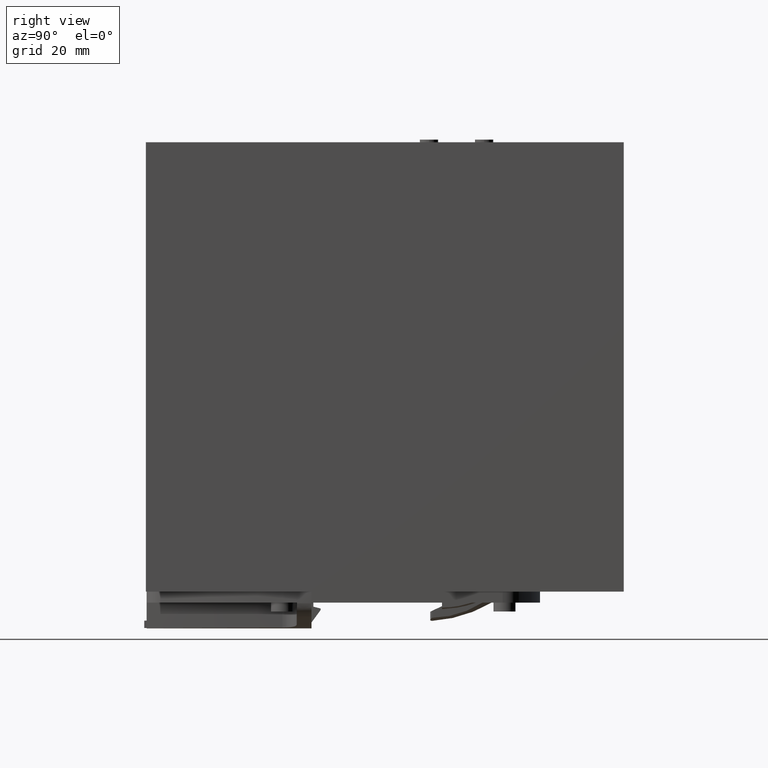
[diagram: clean part render]
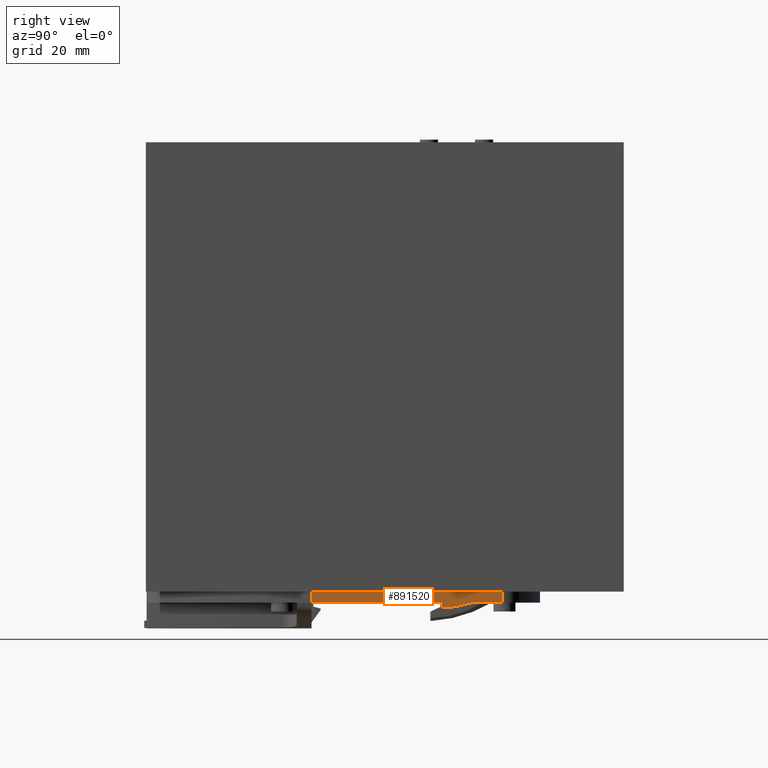
[diagram: same view with one face highlighted and labeled with its STEP entity id]
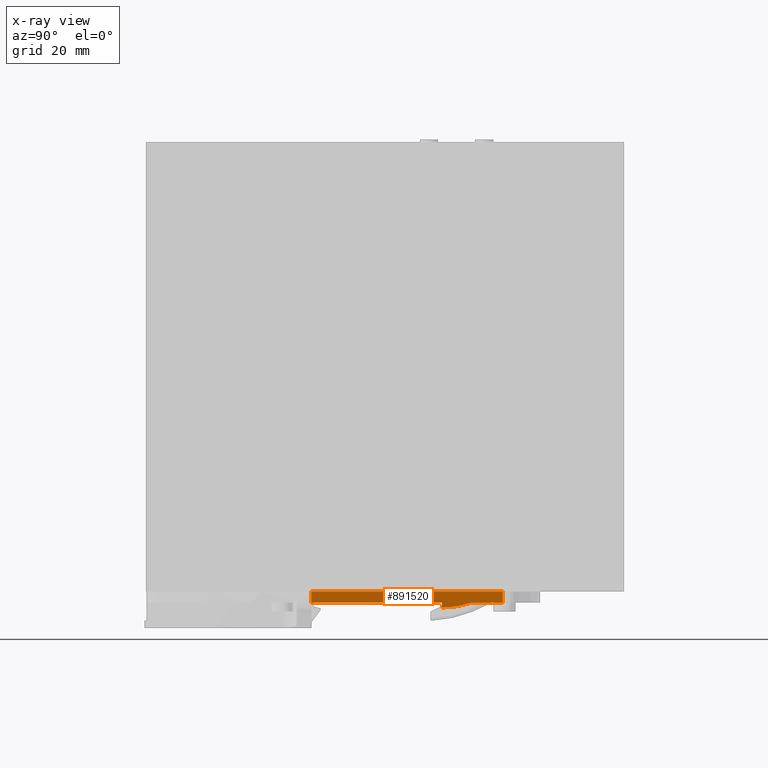
[diagram: x-ray of the same camera — body ghosted, the highlighted face saturated]
A machine part, right view. The second image highlights one B-rep face of the part: STEP entity #891520.
The next image is the same camera in x-ray: the body ghosted, the highlighted face saturated — about 0% of this face is hidden behind the body in this view.
In plain terms, the highlighted planar face has unit normal (-1, 0, 0).
Its self-contained STEP definition (entity closure, byte-faithful):
#8650=CARTESIAN_POINT('',(61.,0.0999999999916668,32.1473524065366));
#8660=VERTEX_POINT('',#8650);
#8690=CARTESIAN_POINT('',(61.,0.0999999999916668,0.));
#8700=DIRECTION('',(0.,0.,-1.));
#8710=VECTOR('',#8700,1.);
#8720=LINE('',#8690,#8710);
#8730=CARTESIAN_POINT('',(61.,0.0999999999916543,84.0968498908014));
#8740=VERTEX_POINT('',#8730);
#8750=EDGE_CURVE('',#8740,#8660,#8720,.T.);
#104920=CARTESIAN_POINT('',(61.,-2.90000000000834,32.1473524065366));
#104930=VERTEX_POINT('',#104920);
#104960=CARTESIAN_POINT('',(61.,1.10000239999169,32.1473524065366));
#104970=DIRECTION('',(0.,-1.,0.));
#104980=VECTOR('',#104970,1.);
#104990=LINE('',#104960,#104980);
#105000=EDGE_CURVE('',#8660,#104930,#104990,.T.);
#857730=CARTESIAN_POINT('',(61.,-2.90000000000834,84.0968498908014));
#857740=VERTEX_POINT('',#857730);
#857770=CARTESIAN_POINT('',(61.,-2.90000000000834,0.));
#857780=DIRECTION('',(0.,0.,1.));
#857790=VECTOR('',#857780,1.);
#857800=LINE('',#857770,#857790);
#857810=CARTESIAN_POINT('',(61.,-2.90000000000834,48.5992150856014));
#857820=VERTEX_POINT('',#857810);
#857830=EDGE_CURVE('',#857820,#857740,#857800,.T.);
#859940=CARTESIAN_POINT('',(71.3776186215084,-1.50441604344967,
59.3890615417308));
#859950=CARTESIAN_POINT('',(67.8905807945972,-2.46315462781471,
59.3760409726225));
#859960=CARTESIAN_POINT('',(64.403542967686,-3.42189321217974,
59.3630204035142));
#859970=CARTESIAN_POINT('',(59.940036942065,-4.64910543663078,
59.3463537105913));
#859980=CARTESIAN_POINT('',(58.960256886242,-4.85962099943991,
59.3427317559507));
#859990=CARTESIAN_POINT('',(54.4409182175586,-5.635865212246,
59.3269920216905));
#860000=CARTESIAN_POINT('',(50.8633678936988,-6.25034731648889,
59.3145323023537));
#860010=CARTESIAN_POINT('',(47.2858175698389,-6.86482942073177,
59.3020725830168));
#860020=CARTESIAN_POINT('',(71.4649916167112,-1.82158789204662,
55.3070226782829));
#860030=CARTESIAN_POINT('',(67.933910524371,-2.66380690772467,
55.4173793020009));
#860040=CARTESIAN_POINT('',(64.4028294320308,-3.50602592340273,
55.527735925719));
#860050=CARTESIAN_POINT('',(59.9402583424642,-4.57042012227885,
55.6672043394053));
#860060=CARTESIAN_POINT('',(58.9611211893232,-4.75735439246061,
55.6966888895867));
#860070=CARTESIAN_POINT('',(54.4445600352414,-5.4540363797365,
55.8262367667353));
#860080=CARTESIAN_POINT('',(50.8531594499154,-6.00801185167878,
55.9292483957041));
#860090=CARTESIAN_POINT('',(47.2617588645895,-6.56198732362106,
56.032260024673));
#860100=CARTESIAN_POINT('',(71.5286159205105,-2.15008544180546,
51.2202886757841));
#860110=CARTESIAN_POINT('',(67.9653659084431,-2.87012203821559,
51.456370061854));
#860120=CARTESIAN_POINT('',(64.4021158963756,-3.59015863462571,
51.6924514479238));
#860130=CARTESIAN_POINT('',(59.9404797428634,-4.49173480792692,
51.9880549682194));
#860140=CARTESIAN_POINT('',(58.9619854924043,-4.6550877854813,
52.0506460232228));
#860150=CARTESIAN_POINT('',(54.4482018529241,-5.27220754722704,
52.3254815117802));
#860160=CARTESIAN_POINT('',(50.8499081675462,-5.76416248330085,
52.5445746012991));
#860170=CARTESIAN_POINT('',(47.2516144821684,-6.25611741937468,
52.763667690818));
#860180=CARTESIAN_POINT('',(71.6483174526818,-2.76885470265374,
46.1844097025758));
#860190=CARTESIAN_POINT('',(68.0245824565934,-3.25896317020212,
45.9625142285715));
#860200=CARTESIAN_POINT('',(64.400847460505,-3.74907163775051,
45.7406187545671));
#860210=CARTESIAN_POINT('',(59.9408721296792,-4.35228122041981,
45.4675170125386));
#860220=CARTESIAN_POINT('',(58.9635597476711,-4.46881777421632,
45.409686028064));
#860230=CARTESIAN_POINT('',(54.455157280269,-4.91477929632723,
45.1557333852177));
#860240=CARTESIAN_POINT('',(50.8298122310565,-5.27339066876216,
44.9515222565232));
#860250=CARTESIAN_POINT('',(47.204467181844,-5.63200204119708,
44.7473111278287));
#860260=CARTESIAN_POINT('',(71.6049814775971,-2.62228922657929,
44.1862294668129));
#860270=CARTESIAN_POINT('',(67.9952071859746,-2.99199532571181,
43.6766161009097));
#860280=CARTESIAN_POINT('',(64.3854328943521,-3.36170142484436,
43.1670027350064));
#860290=CARTESIAN_POINT('',(59.9456771456137,-3.81641261905298,
42.5402159366867));
#860300=CARTESIAN_POINT('',(58.971404518455,-3.90418316006749,
42.4135243350508));
#860310=CARTESIAN_POINT('',(54.4708672381153,-4.23934325729022,
41.8824170975357));
#860320=CARTESIAN_POINT('',(50.8596925148013,-4.50827151984262,
41.4562633047737));
#860330=CARTESIAN_POINT('',(47.2485177914873,-4.77719978239505,
41.0301095120117));
#860340=CARTESIAN_POINT('',(71.2943671864489,-1.34931680143503,
39.9382223000965));
#860350=CARTESIAN_POINT('',(67.8245274244743,-1.43722363529471,
38.8826468176419));
#860360=CARTESIAN_POINT('',(64.3546876624996,-1.5251304691544,
37.8270713351873));
#860370=CARTESIAN_POINT('',(59.9552615333447,-1.63658795663027,
36.4887022238243));
#860380=CARTESIAN_POINT('',(58.9868939039784,-1.65819126235366,
36.2221875959119));
#860390=CARTESIAN_POINT('',(54.5012358905247,-1.74300799729869,
35.1192682247638));
#860400=CARTESIAN_POINT('',(50.9899657319504,-1.80940059108694,
34.2559282502025));
#860410=CARTESIAN_POINT('',(47.4786955733761,-1.87579318487518,
33.3925882756412));
#860420=CARTESIAN_POINT('',(71.4222429006199,-0.0255577472793451,
35.9540887202444));
#860430=CARTESIAN_POINT('',(67.879676351948,-0.136535036826837,
35.0450510826265));
#860440=CARTESIAN_POINT('',(64.3371098032761,-0.247512326374322,
34.1360134450086));
#860450=CARTESIAN_POINT('',(59.9607663109547,-0.38460918319659,
33.0130250988458));
#860460=CARTESIAN_POINT('',(58.9954847551747,-0.412500647180176,
32.7882971712962));
#860470=CARTESIAN_POINT('',(54.516650024788,-0.534077769304675,
31.8503565946234));
#860480=CARTESIAN_POINT('',(50.9619732528168,-0.630568798341089,
31.1059496713744));
#860490=CARTESIAN_POINT('',(47.4072964808457,-0.727059827377504,
30.3615427481253));
#860500=CARTESIAN_POINT('',(71.5325160442117,1.29974594385051,
31.9487843553515));
#860510=CARTESIAN_POINT('',(67.9260239941322,1.16492588012812,
31.1968699550907));
#860520=CARTESIAN_POINT('',(64.3195319440527,1.03010581640573,
30.4449555548298));
#860530=CARTESIAN_POINT('',(59.9662710885648,0.867369590237102,
29.5373479738673));
#860540=CARTESIAN_POINT('',(59.004075606371,0.833189967993304,
29.3544067466805));
#860550=CARTESIAN_POINT('',(54.5320641590512,0.674852458689349,
28.581444964483));
#860560=CARTESIAN_POINT('',(50.9401788551655,0.547676985320733,
27.9606079879577));
#860570=CARTESIAN_POINT('',(47.3482935512799,0.420501511952123,
27.3397710114324));
#860580=B_SPLINE_SURFACE_WITH_KNOTS('',3,3,((#859940,#860020,#860100,
#860180,#860260,#860340,#860420,#860500),(#859950,#860030,#860110,
#860190,#860270,#860350,#860430,#860510),(#859960,#860040,#860120,
#860200,#860280,#860360,#860440,#860520),(#859970,#860050,#860130,
#860210,#860290,#860370,#860450,#860530),(#859980,#860060,#860140,
#860220,#860300,#860380,#860460,#860540),(#859990,#860070,#860150,
#860230,#860310,#860390,#860470,#860550),(#860000,#860080,#860160,
#860240,#860320,#860400,#860480,#860560),(#860010,#860090,#860170,
#860250,#860330,#860410,#860490,#860570)),.UNSPECIFIED.,.F.,.F.,.F.,(4,2
,2,4),(4,2,2,4),(-1.04425037197643,0.00840241999769925,0.303174667007196
,1.36540567626834),(-0.672680963199468,0.00647129604993427,
0.596721513342289,1.28419559916893),.UNSPECIFIED.);
#860740=CARTESIAN_POINT('',(61.,-2.90000000000834,40.4366382723885));
#860750=VERTEX_POINT('',#860740);
#860780=CARTESIAN_POINT('',(61.,-2.90000000000834,0.));
#860790=DIRECTION('',(0.,0.,1.));
#860800=VECTOR('',#860790,1.);
#860810=LINE('',#860780,#860800);
#860820=EDGE_CURVE('',#104930,#860750,#860810,.T.);
#890530=CARTESIAN_POINT('',(61.,61.2249999999917,48.5992150856014));
#890540=DIRECTION('',(0.,-1.,0.));
#890550=VECTOR('',#890540,1.);
#890560=LINE('',#890530,#890550);
#890570=CARTESIAN_POINT('',(61.,-4.24198216644077,48.5992150856014));
#890580=VERTEX_POINT('',#890570);
#890590=EDGE_CURVE('',#857820,#890580,#890560,.T.);
#891090=CARTESIAN_POINT('',(61.,-2.90000000000834,21.8444846960001));
#891100=DIRECTION('',(-1.,0.,0.));
#891110=DIRECTION('',(0.,0.,1.));
#891120=AXIS2_PLACEMENT_3D('',#891090,#891100,#891110);
#891130=PLANE('',#891120);
#891140=ORIENTED_EDGE('',*,*,#860820,.F.);
#891150=CARTESIAN_POINT('',(61.,-2.90000000000834,21.8444846960001));
#891160=DIRECTION('',(-1.,0.,0.));
#891170=DIRECTION('',(0.,0.,1.));
#891180=AXIS2_PLACEMENT_3D('',#891150,#891160,#891170);
#891190=PLANE('',#891180);
#891200=CARTESIAN_POINT('',(61.,-2.90000000000833,40.4366382723885));
#891210=CARTESIAN_POINT('',(61.,-3.11995909055093,41.0926285194318));
#891220=CARTESIAN_POINT('',(61.,-3.31359719072416,41.7582662965021));
#891230=CARTESIAN_POINT('',(61.,-3.47979123923969,42.430414259942));
#891240=CARTESIAN_POINT('',(61.,-3.64604335299441,43.1027970599036));
#891250=CARTESIAN_POINT('',(61.,-3.78463065206904,43.7805063631685));
#891260=CARTESIAN_POINT('',(61.,-3.89602768334604,44.4633891268116));
#891270=CARTESIAN_POINT('',(61.,-4.00744746344541,45.1464113446081));
#891280=CARTESIAN_POINT('',(61.,-4.09160128831743,45.834689456726));
#891290=CARTESIAN_POINT('',(61.,-4.14893551379175,46.5250924250058));
#891300=CARTESIAN_POINT('',(61.,-4.17760205810329,46.8702870643207));
#891310=CARTESIAN_POINT('',(61.,-4.19957718228291,47.215997751556));
#891320=CARTESIAN_POINT('',(61.,-4.2150011044441,47.5618187283178));
#891330=CARTESIAN_POINT('',(61.,-4.23043252045366,47.9078077252459));
#891340=CARTESIAN_POINT('',(61.,-4.23826713282839,48.2534250875068));
#891350=CARTESIAN_POINT('',(61.,-4.24198216644075,48.5992150856014));
#891360=B_SPLINE_CURVE_WITH_KNOTS('',3,(#891200,#891210,#891220,#891230,
#891240,#891250,#891260,#891270,#891280,#891290,#891300,#891310,#891320,
#891330,#891340,#891350),.UNSPECIFIED.,.F.,.F.,(4,3,3,3,3,4),(0.,
2.07693672640201,4.15264792437999,6.23034350342768,7.26923613589252,
8.30703278400105),.UNSPECIFIED.);
#891370=SURFACE_CURVE('',#891360,(#891190,#860580),.CURVE_3D.);
#891380=EDGE_CURVE('',#860750,#890580,#891370,.T.);
#891390=ORIENTED_EDGE('',*,*,#891380,.F.);
#891400=ORIENTED_EDGE('',*,*,#890590,.T.);
#891410=ORIENTED_EDGE('',*,*,#857830,.F.);
#891420=CARTESIAN_POINT('',(61.,1.10000239999169,84.0968498908014));
#891430=DIRECTION('',(0.,-1.,0.));
#891440=VECTOR('',#891430,1.);
#891450=LINE('',#891420,#891440);
#891460=EDGE_CURVE('',#8740,#857740,#891450,.T.);
#891470=ORIENTED_EDGE('',*,*,#891460,.T.);
#891480=ORIENTED_EDGE('',*,*,#8750,.F.);
#891490=ORIENTED_EDGE('',*,*,#105000,.F.);
#891500=EDGE_LOOP('',(#891490,#891480,#891470,#891410,#891400,#891390,
#891140));
#891510=FACE_OUTER_BOUND('',#891500,.T.);
#891520=ADVANCED_FACE('',(#891510),#891130,.F.);